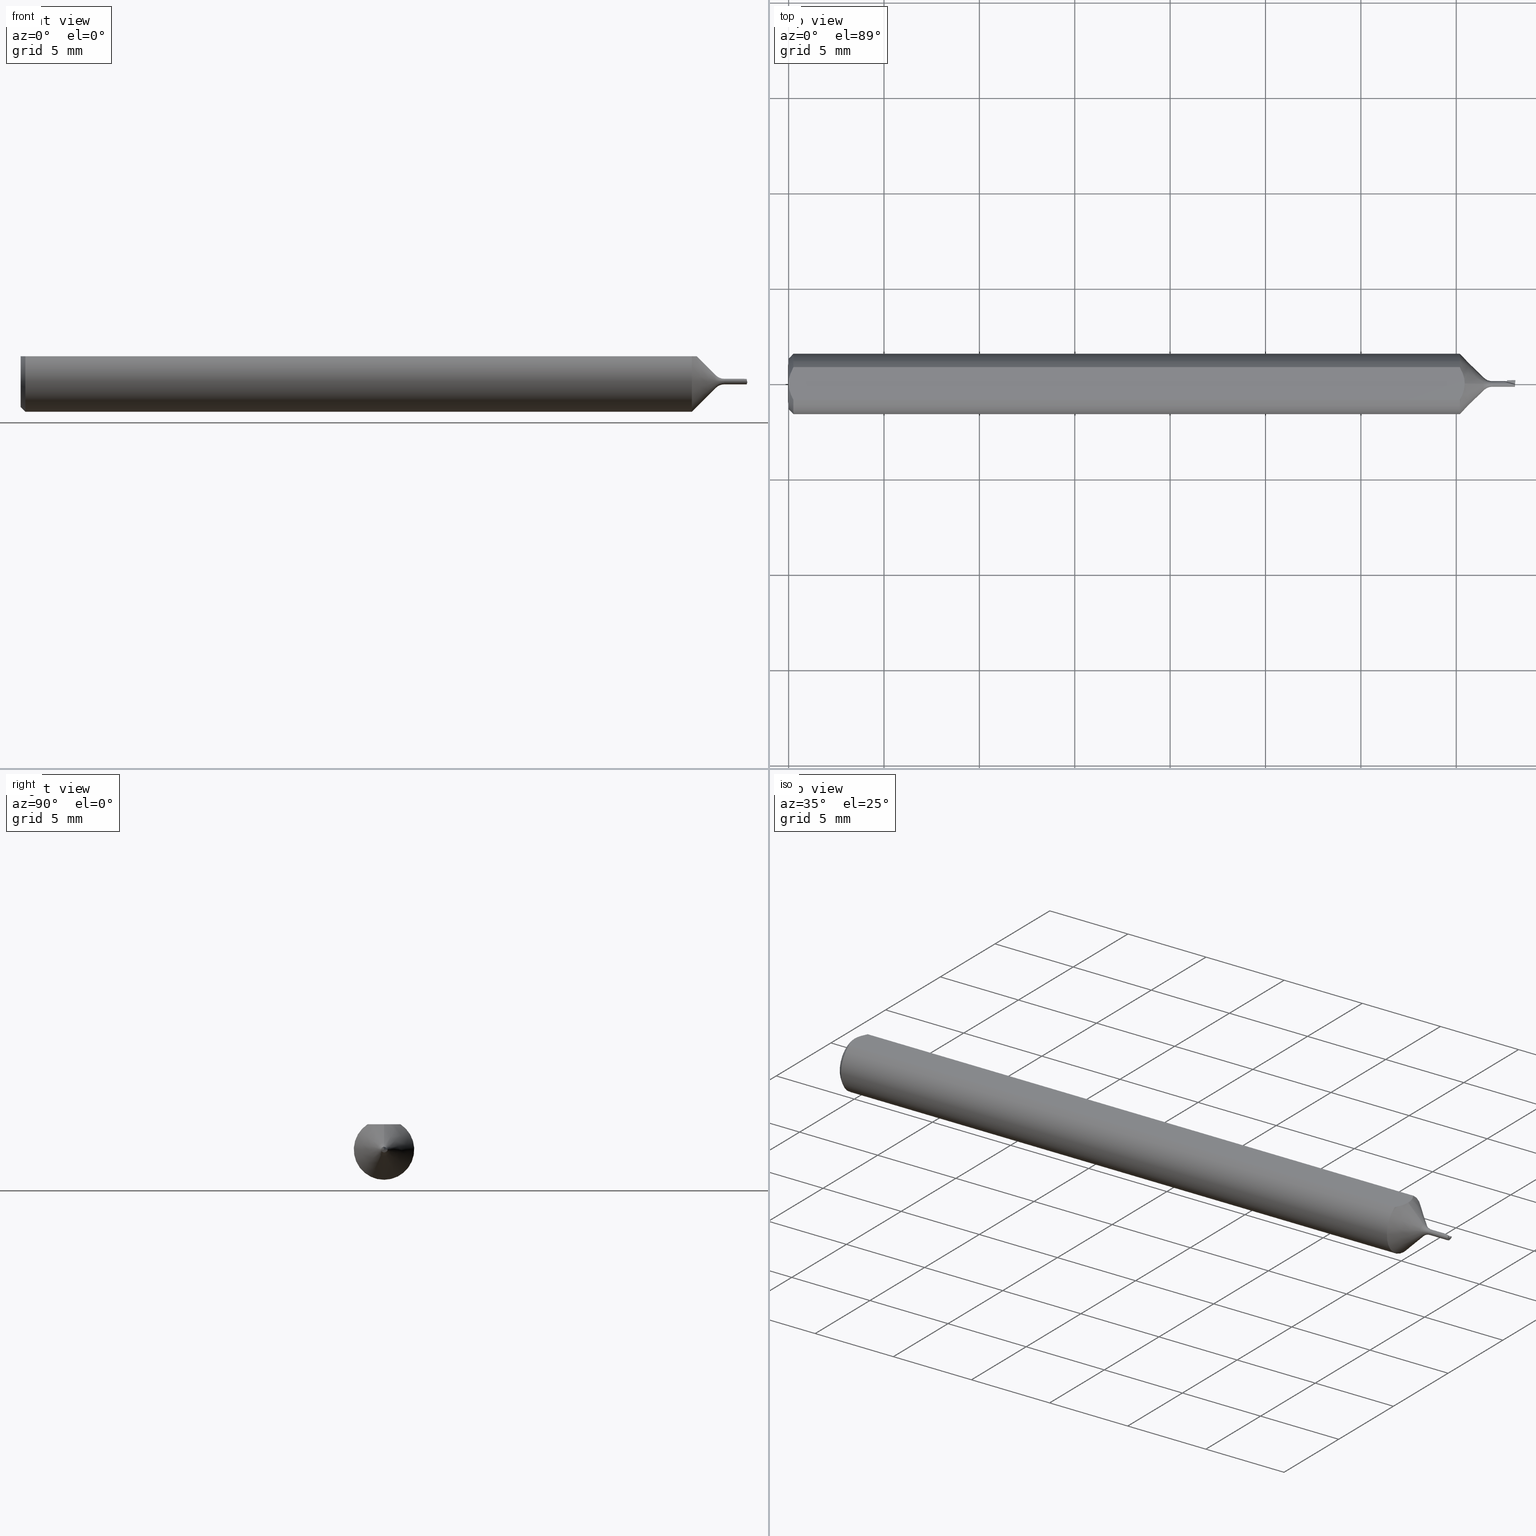
[diagram: canonical four-view strip — front | top / right | iso, engineering-drawing reading convention]
A machine part, canonical four-view strip (front | top / right | iso — engineering-drawing reading convention). The complete STEP part file that produces these views, byte-faithful:
ISO-10303-21;
HEADER;
FILE_DESCRIPTION (( 'STEP AP203' ),
    '1' );
FILE_NAME ('210001-MB015050.STEP',
    '2025-01-28T22:19:08',
    ( '' ),
    ( '' ),
    'SwSTEP 2.0',
    'SolidWorks 2024',
    '' );
FILE_SCHEMA (( 'CONFIG_CONTROL_DESIGN' ));
ENDSEC;

DATA;
#1 = AXIS2_PLACEMENT_3D ( 'NONE', #580, #138, #286 ) ;
#2 = CARTESIAN_POINT ( 'NONE',  ( 1.499282403470484137, 0.005951440925968072733, -0.003816130532801915911 ) ) ;
#3 = VERTEX_POINT ( 'NONE', #640 ) ;
#4 = LINE ( 'NONE', #482, #633 ) ;
#5 = ORIENTED_EDGE ( 'NONE', *, *, #457, .F. ) ;
#6 = DIRECTION ( 'NONE',  ( -1.000000000000000000, -0.000000000000000000, -0.000000000000000000 ) ) ;
#7 = CARTESIAN_POINT ( 'NONE',  ( 1.434677669529663691, 0.000000000000000000, 0.01307233047033636367 ) ) ;
#8 = EDGE_CURVE ( 'NONE', #109, #192, #76, .T. ) ;
#9 = AXIS2_PLACEMENT_3D ( 'NONE', #534, #639, #494 ) ;
#10 = CARTESIAN_POINT ( 'NONE',  ( 1.434677669529663691, 1.600898766789383965E-18, -0.01307233047033636193 ) ) ;
#11 = CARTESIAN_POINT ( 'NONE',  ( 0.000000000000000000, -0.03386738844375220686, 0.05235000000000000070 ) ) ;
#12 = ORIENTED_EDGE ( 'NONE', *, *, #139, .F. ) ;
#13 = CARTESIAN_POINT ( 'NONE',  ( 1.434677669529663691, 1.600898766789384158E-18, -0.01307233047033636367 ) ) ;
#14 = CARTESIAN_POINT ( 'NONE',  ( 0.000000000000000000, 0.000000000000000000, 0.005750000000000002505 ) ) ;
#15 = FACE_OUTER_BOUND ( 'NONE', #134, .T. ) ;
#16 = CARTESIAN_POINT ( 'NONE',  ( 0.001063697276021616971, 0.01189177144351694082, 0.05235000000000001458 ) ) ;
#17 = CC_DESIGN_APPROVAL ( #540, ( #426 ) ) ;
#18 = EDGE_CURVE ( 'NONE', #431, #39, #570, .T. ) ;
#19 = LINE ( 'NONE', #558, #442 ) ;
#20 = DIRECTION ( 'NONE',  ( 1.000000000000000000, 0.000000000000000000, 0.000000000000000000 ) ) ;
#21 = APPLICATION_PROTOCOL_DEFINITION ( 'international standard', 'config_control_design', 1994, #33 ) ;
#22 = DIRECTION ( 'NONE',  ( -1.000000000000000000, 0.000000000000000000, -0.000000000000000000 ) ) ;
#23 = ORIENTED_EDGE ( 'NONE', *, *, #553, .F. ) ;
#24 = PRODUCT_DEFINITION_SHAPE ( 'NONE', 'NONE',  #426 ) ;
#25 = LINE ( 'NONE', #279, #163 ) ;
#26 = EDGE_CURVE ( 'NONE', #109, #342, #560, .T. ) ;
#27 = ORIENTED_EDGE ( 'NONE', *, *, #225, .F. ) ;
#28 =( CONVERSION_BASED_UNIT ( 'INCH', #429 ) LENGTH_UNIT ( ) NAMED_UNIT ( #181 ) );
#29 = CONICAL_SURFACE ( 'NONE', #524, 0.01307233047033636367, 0.7853981633974501664 ) ;
#30 = DIRECTION ( 'NONE',  ( 0.000000000000000000, 0.000000000000000000, 1.000000000000000000 ) ) ;
#31 = VECTOR ( 'NONE', #433, 39.37007874015748854 ) ;
#32 = VERTEX_POINT ( 'NONE', #274 ) ;
#33 = APPLICATION_CONTEXT ( 'configuration controlled 3d designs of mechanical parts and assemblies' ) ;
#34 = CALENDAR_DATE ( 2025, 28, 1 ) ;
#35 = CARTESIAN_POINT ( 'NONE',  ( 1.385400000000000187, 7.635672792683749753E-18, -0.06235000000000000958 ) ) ;
#36 = ORIENTED_EDGE ( 'NONE', *, *, #603, .T. ) ;
#37 = EDGE_CURVE ( 'NONE', #261, #80, #218, .T. ) ;
#38 = DIRECTION ( 'NONE',  ( -1.000000000000000000, 0.000000000000000000, -0.000000000000000000 ) ) ;
#39 = VERTEX_POINT ( 'NONE', #564 ) ;
#40 = COORDINATED_UNIVERSAL_TIME_OFFSET ( 8, 0, .BEHIND. ) ;
#41 = CARTESIAN_POINT ( 'NONE',  ( 1.494969582669396502, -0.0004450547791698049684, 0.005750000000000006842 ) ) ;
#42 = ORIENTED_EDGE ( 'NONE', *, *, #504, .F. ) ;
#43 = CC_DESIGN_PERSON_AND_ORGANIZATION_ASSIGNMENT ( #579, #528, ( #426 ) ) ;
#44 = AXIS2_PLACEMENT_3D ( 'NONE', #79, #194, #89 ) ;
#45 = DIRECTION ( 'NONE',  ( 1.000000000000000000, -0.000000000000000000, 0.000000000000000000 ) ) ;
#46 = VERTEX_POINT ( 'NONE', #456 ) ;
#47 = PERSON_AND_ORGANIZATION ( #551, #364 ) ;
#48 = DIRECTION ( 'NONE',  ( -0.9864997997699080923, 0.08630754905044249470, 0.1391731009600517821 ) ) ;
#49 = ORIENTED_EDGE ( 'NONE', *, *, #26, .T. ) ;
#50 = ADVANCED_FACE ( 'NONE', ( #165 ), #308, .T. ) ;
#51 = COORDINATED_UNIVERSAL_TIME_OFFSET ( 8, 0, .BEHIND. ) ;
#52 = PRODUCT_RELATED_PRODUCT_CATEGORY ( 'detail', '', ( #231 ) ) ;
#53 = CARTESIAN_POINT ( 'NONE',  ( 0.01000000000000002970, 0.03386738844375217911, 0.05235000000000001458 ) ) ;
#54 = AXIS2_PLACEMENT_3D ( 'NONE', #348, #48, #103 ) ;
#55 = CARTESIAN_POINT ( 'NONE',  ( 0.01000000000000002970, 0.03386738844375217911, 0.05235000000000001458 ) ) ;
#56 = LOCAL_TIME ( 14, 19, 8.000000000000000000, #51 ) ;
#57 = DIRECTION ( 'NONE',  ( -0.1634519077459254122, -0.4666144205109024612, -0.8692263551144155942 ) ) ;
#58 = ORIENTED_EDGE ( 'NONE', *, *, #446, .F. ) ;
#59 = DIRECTION ( 'NONE',  ( -1.000000000000000000, 0.000000000000000000, -0.000000000000000000 ) ) ;
#60 = DIRECTION ( 'NONE',  ( 0.1293675338645188522, 0.9317961139776890223, 0.3391460498928009493 ) ) ;
#61 = CARTESIAN_POINT ( 'NONE',  ( 1.434677669529663691, 0.000000000000000000, 0.000000000000000000 ) ) ;
#62 = DIRECTION ( 'NONE',  ( -1.000000000000000000, 0.000000000000000000, -0.000000000000000000 ) ) ;
#63 = EDGE_LOOP ( 'NONE', ( #71, #168, #318, #481, #377 ) ) ;
#64 = FACE_OUTER_BOUND ( 'NONE', #438, .T. ) ;
#65 = DIRECTION ( 'NONE',  ( 0.000000000000000000, -1.224646799147353207E-16, 1.000000000000000000 ) ) ;
#66 = DIRECTION ( 'NONE',  ( 0.000000000000000000, 0.000000000000000000, -1.000000000000000000 ) ) ;
#67 = CARTESIAN_POINT ( 'NONE',  ( 1.395400000000000196, -0.005922649332173337763, 0.05235000000000002152 ) ) ;
#68 = EDGE_CURVE ( 'NONE', #362, #120, #176, .T. ) ;
#69 = DIRECTION ( 'NONE',  ( 0.1396943646708919684, 0.000000000000000000, -0.9901946699913082295 ) ) ;
#70 = FACE_OUTER_BOUND ( 'NONE', #353, .T. ) ;
#71 = ORIENTED_EDGE ( 'NONE', *, *, #349, .T. ) ;
#72 = PRODUCT_DEFINITION_FORMATION_WITH_SPECIFIED_SOURCE ( 'ANY', '', #231, .NOT_KNOWN. ) ;
#73 = APPROVAL_ROLE ( '' ) ;
#74 = AXIS2_PLACEMENT_3D ( 'NONE', #371, #509, #65 ) ;
#75 = CARTESIAN_POINT ( 'NONE',  ( 0.01000000000000002970, 0.000000000000000000, 0.000000000000000000 ) ) ;
#76 =( BOUNDED_CURVE ( )  B_SPLINE_CURVE ( 3, ( #351, #542, #299, #492 ),
 .UNSPECIFIED., .F., .T. ) 
 B_SPLINE_CURVE_WITH_KNOTS ( ( 4, 4 ),
 ( 4.982986395506920019, 6.553782722301815689 ),
 .UNSPECIFIED. ) 
 CURVE ( )  GEOMETRIC_REPRESENTATION_ITEM ( )  RATIONAL_B_SPLINE_CURVE ( ( 1.000000000000000000, 0.8047378541243652705, 0.8047378541243652705, 1.000000000000000000 ) ) 
 REPRESENTATION_ITEM ( '' )  );
#77 = CARTESIAN_POINT ( 'NONE',  ( 1.452355339059327344, 0.000000000000000000, 0.000000000000000000 ) ) ;
#78 = EDGE_CURVE ( 'NONE', #531, #465, #220, .T. ) ;
#79 = CARTESIAN_POINT ( 'NONE',  ( 1.483000000000000096, 0.005749999999999999903, 0.000000000000000000 ) ) ;
#80 = VERTEX_POINT ( 'NONE', #315 ) ;
#81 = DIRECTION ( 'NONE',  ( -1.000000000000000000, 0.000000000000000000, -0.000000000000000000 ) ) ;
#82 = ORIENTED_EDGE ( 'NONE', *, *, #624, .T. ) ;
#83 = CIRCLE ( 'NONE', #343, 0.01307233047033636367 ) ;
#84 = CARTESIAN_POINT ( 'NONE',  ( 1.483000000000000096, 0.007554839333324047876, -1.067128122525102820E-18 ) ) ;
#85 = VECTOR ( 'NONE', #622, 39.37007874015748143 ) ;
#86 = ORIENTED_EDGE ( 'NONE', *, *, #229, .T. ) ;
#87 = ADVANCED_FACE ( 'NONE', ( #555 ), #361, .T. ) ;
#88 = COORDINATED_UNIVERSAL_TIME_OFFSET ( 8, 0, .BEHIND. ) ;
#89 = DIRECTION ( 'NONE',  ( 0.000000000000000000, 0.000000000000000000, -1.000000000000000000 ) ) ;
#90 = ORIENTED_EDGE ( 'NONE', *, *, #545, .F. ) ;
#91 = CARTESIAN_POINT ( 'NONE',  ( 1.498395057673378661, -0.001320290275919796998, 0.005596367892420194695 ) ) ;
#92 = ORIENTED_EDGE ( 'NONE', *, *, #504, .T. ) ;
#93 = DATE_AND_TIME ( #347, #599 ) ;
#94 = CARTESIAN_POINT ( 'NONE',  ( 1.493308615621382840, 0.000000000000000000, 0.005750000000000002505 ) ) ;
#95 = AXIS2_PLACEMENT_3D ( 'NONE', #77, #615, #522 ) ;
#96 = ORIENTED_EDGE ( 'NONE', *, *, #319, .F. ) ;
#97 = DIRECTION ( 'NONE',  ( 0.9659258262890716429, -0.2588190451025078054, 0.000000000000000000 ) ) ;
#98 = EDGE_CURVE ( 'NONE', #295, #46, #614, .T. ) ;
#99 =( BOUNDED_CURVE ( )  B_SPLINE_CURVE ( 3, ( #298, #394, #144, #491 ),
 .UNSPECIFIED., .F., .F. ) 
 B_SPLINE_CURVE_WITH_KNOTS ( ( 4, 4 ),
 ( 5.728084607564705166, 7.298880934359537775 ),
 .UNSPECIFIED. ) 
 CURVE ( )  GEOMETRIC_REPRESENTATION_ITEM ( )  RATIONAL_B_SPLINE_CURVE ( ( 1.000000000000000000, 0.8047378541243800365, 0.8047378541243800365, 1.000000000000000000 ) ) 
 REPRESENTATION_ITEM ( '' )  );
#100 = ORIENTED_EDGE ( 'NONE', *, *, #229, .F. ) ;
#101 = ORIENTED_EDGE ( 'NONE', *, *, #485, .T. ) ;
#102 = APPROVAL ( #320, 'UNSPECIFIED' ) ;
#103 = DIRECTION ( 'NONE',  ( 0.1396943646708780906, 0.000000000000000000, 0.9901946699913101169 ) ) ;
#104 = LOCAL_TIME ( 14, 19, 8.000000000000000000, #88 ) ;
#105 = EDGE_LOOP ( 'NONE', ( #27, #129, #645, #290, #49, #530 ) ) ;
#106 = EDGE_CURVE ( 'NONE', #465, #362, #132, .T. ) ;
#107 = CONICAL_SURFACE ( 'NONE', #199, 0.01307233047033636367, 0.7853981633974501664 ) ;
#108 = DIRECTION ( 'NONE',  ( -0.9990412074052671398, -0.04113950153445256747, -0.01497355401108969516 ) ) ;
#109 = VERTEX_POINT ( 'NONE', #608 ) ;
#110 = EDGE_CURVE ( 'NONE', #567, #80, #263, .T. ) ;
#111 = CARTESIAN_POINT ( 'NONE',  ( 1.452355339059327344, 0.000000000000000000, 0.000000000000000000 ) ) ;
#112 = CARTESIAN_POINT ( 'NONE',  ( -8.222555661594205093E-16, 0.005954997531773998168, 0.05235000000000002152 ) ) ;
#113 = DIRECTION ( 'NONE',  ( -1.000000000000000000, 0.000000000000000000, -0.000000000000000000 ) ) ;
#114 = DIRECTION ( 'NONE',  ( 0.000000000000000000, 0.000000000000000000, -1.000000000000000000 ) ) ;
#115 = AXIS2_PLACEMENT_3D ( 'NONE', #235, #187, #625 ) ;
#116 = CIRCLE ( 'NONE', #206, 0.06235000000000000264 ) ;
#117 = LINE ( 'NONE', #506, #354 ) ;
#118 = CARTESIAN_POINT ( 'NONE',  ( 1.499738978031866843, 0.009378964034756473792, -0.002705358454831860264 ) ) ;
#119 = EDGE_CURVE ( 'NONE', #517, #140, #324, .T. ) ;
#120 = VERTEX_POINT ( 'NONE', #605 ) ;
#121 = DIRECTION ( 'NONE',  ( -1.000000000000000000, 0.000000000000000000, -0.000000000000000000 ) ) ;
#122 = CARTESIAN_POINT ( 'NONE',  ( 1.560200597524541877, 0.001966615824122618789, -0.005403232569518965842 ) ) ;
#123 = PERSON_AND_ORGANIZATION ( #551, #364 ) ;
#124 = CARTESIAN_POINT ( 'NONE',  ( 0.000000000000000000, 0.000000000000000000, 0.05235000000000005621 ) ) ;
#125 = CIRCLE ( 'NONE', #160, 0.005749999999999999903 ) ;
#126 = ADVANCED_FACE ( 'NONE', ( #70 ), #312, .F. ) ;
#127 = PERSON_AND_ORGANIZATION ( #551, #364 ) ;
#128 = DIRECTION ( 'NONE',  ( 0.000000000000000000, -0.7072279454806355004, -0.7069855961271339639 ) ) ;
#129 = ORIENTED_EDGE ( 'NONE', *, *, #408, .T. ) ;
#130 = EDGE_CURVE ( 'NONE', #261, #305, #145, .T. ) ;
#131 = PERSON_AND_ORGANIZATION ( #551, #364 ) ;
#132 = B_SPLINE_CURVE_WITH_KNOTS ( 'NONE', 3,
 ( #215, #67, #213, #410, #415, #271 ),
 .UNSPECIFIED., .F., .F.,
 ( 4, 2, 4 ),
 ( 0.003147381525721188247, 0.003596555799849169080, 0.004045730073977149913 ),
 .UNSPECIFIED. ) ;
#133 = CC_DESIGN_PERSON_AND_ORGANIZATION_ASSIGNMENT ( #419, #182, ( #72 ) ) ;
#134 = EDGE_LOOP ( 'NONE', ( #619, #202, #211 ) ) ;
#135 = FACE_OUTER_BOUND ( 'NONE', #505, .T. ) ;
#136 = EDGE_LOOP ( 'NONE', ( #448, #233, #346, #589 ) ) ;
#137 = APPROVAL_ROLE ( '' ) ;
#138 = DIRECTION ( 'NONE',  ( -1.000000000000000000, -0.000000000000000000, -0.000000000000000000 ) ) ;
#139 = EDGE_CURVE ( 'NONE', #39, #120, #147, .T. ) ;
#140 = VERTEX_POINT ( 'NONE', #499 ) ;
#141 = PERSON_AND_ORGANIZATION_ROLE ( 'classification_officer' ) ;
#142 = FACE_OUTER_BOUND ( 'NONE', #627, .T. ) ;
#143 = ORIENTED_EDGE ( 'NONE', *, *, #421, .T. ) ;
#144 = CARTESIAN_POINT ( 'NONE',  ( 1.498321842882053945, -0.005749999999999796073, -0.003368272016354886475 ) ) ;
#145 =( BOUNDED_CURVE ( )  B_SPLINE_CURVE ( 3, ( #418, #412, #179, #171 ),
 .UNSPECIFIED., .F., .F. ) 
 B_SPLINE_CURVE_WITH_KNOTS ( ( 4, 4 ),
 ( 5.379018757165837883, 5.728084607564705166 ),
 .UNSPECIFIED. ) 
 CURVE ( )  GEOMETRIC_REPRESENTATION_ITEM ( )  RATIONAL_B_SPLINE_CURVE ( ( 1.000000000000000000, 0.9898718353414719395, 0.9898718353414719395, 1.000000000000000000 ) ) 
 REPRESENTATION_ITEM ( '' )  );
#146 = EDGE_LOOP ( 'NONE', ( #495, #100, #380, #92 ) ) ;
#147 = B_SPLINE_CURVE_WITH_KNOTS ( 'NONE', 3,
 ( #124, #451, #365, #602, #359, #552 ),
 .UNSPECIFIED., .F., .F.,
 ( 4, 2, 4 ),
 ( 0.001820301466808306933, 0.002269751589840580432, 0.002719201712872853713 ),
 .UNSPECIFIED. ) ;
#148 = EDGE_CURVE ( 'NONE', #177, #272, #269, .T. ) ;
#149 = FACE_OUTER_BOUND ( 'NONE', #151, .T. ) ;
#150 = CONICAL_SURFACE ( 'NONE', #590, 0.05235000000000005621, 0.7853981633974447263 ) ;
#151 = EDGE_LOOP ( 'NONE', ( #392, #238, #339, #200 ) ) ;
#152 = VECTOR ( 'NONE', #407, 39.37007874015748143 ) ;
#153 = CALENDAR_DATE ( 2025, 28, 1 ) ;
#154 = CARTESIAN_POINT ( 'NONE',  ( 0.000000000000000000, 0.000000000000000000, 0.000000000000000000 ) ) ;
#155 = ORIENTED_EDGE ( 'NONE', *, *, #106, .F. ) ;
#156 = FACE_OUTER_BOUND ( 'NONE', #631, .T. ) ;
#157 = EDGE_LOOP ( 'NONE', ( #326, #549, #42, #638, #356, #143, #250, #23 ) ) ;
#158 = ADVANCED_FACE ( 'NONE', ( #430 ), #335, .F. ) ;
#159 = DIRECTION ( 'NONE',  ( -1.000000000000000000, 0.000000000000000000, -0.000000000000000000 ) ) ;
#160 = AXIS2_PLACEMENT_3D ( 'NONE', #214, #59, #310 ) ;
#161 = EDGE_LOOP ( 'NONE', ( #86, #309, #572, #297, #374 ) ) ;
#162 = CC_DESIGN_PERSON_AND_ORGANIZATION_ASSIGNMENT ( #327, #519, ( #231 ) ) ;
#163 = VECTOR ( 'NONE', #198, 39.37007874015748143 ) ;
#164 = LINE ( 'NONE', #13, #472 ) ;
#165 = FACE_OUTER_BOUND ( 'NONE', #287, .T. ) ;
#166 = LINE ( 'NONE', #262, #311 ) ;
#167 = DIRECTION ( 'NONE',  ( 0.000000000000000000, 0.3420201433256727652, -0.9396926207859069846 ) ) ;
#168 = ORIENTED_EDGE ( 'NONE', *, *, #98, .F. ) ;
#169 = EDGE_CURVE ( 'NONE', #431, #204, #25, .T. ) ;
#170 = CARTESIAN_POINT ( 'NONE',  ( 1.452355339059327344, 0.000000000000000000, 0.000000000000000000 ) ) ;
#171 = CARTESIAN_POINT ( 'NONE',  ( 1.498488894044102793, 7.041719095097283645E-19, -0.005750000000000002505 ) ) ;
#172 = CC_DESIGN_PERSON_AND_ORGANIZATION_ASSIGNMENT ( #386, #141, ( #610 ) ) ;
#173 = AXIS2_PLACEMENT_3D ( 'NONE', #611, #6, #66 ) ;
#174 = AXIS2_PLACEMENT_3D ( 'NONE', #566, #20, #114 ) ;
#175 = CARTESIAN_POINT ( 'NONE',  ( 1.434677669529663691, 0.000000000000000000, 0.01307233047033636193 ) ) ;
#176 = LINE ( 'NONE', #11, #344 ) ;
#177 = VERTEX_POINT ( 'NONE', #516 ) ;
#178 = CALENDAR_DATE ( 2025, 28, 1 ) ;
#179 = CARTESIAN_POINT ( 'NONE',  ( 1.498547726859329465, 0.0006724621551572815270, -0.005750000000000006842 ) ) ;
#180 = EDGE_CURVE ( 'NONE', #230, #372, #464, .T. ) ;
#181 = DIMENSIONAL_EXPONENTS ( 1.000000000000000000, 0.000000000000000000, 0.000000000000000000, 0.000000000000000000, 0.000000000000000000, 0.000000000000000000, 0.000000000000000000 ) ;
#182 = PERSON_AND_ORGANIZATION_ROLE ( 'creator' ) ;
#183 = CARTESIAN_POINT ( 'NONE',  ( 0.01000000000000002970, 0.000000000000000000, 0.000000000000000000 ) ) ;
#184 = ORIENTED_EDGE ( 'NONE', *, *, #306, .T. ) ;
#185 = EDGE_CURVE ( 'NONE', #477, #597, #476, .T. ) ;
#186 = AXIS2_PLACEMENT_3D ( 'NONE', #449, #270, #268 ) ;
#187 = DIRECTION ( 'NONE',  ( 0.01850989765925709074, -0.7068644733530222712, 0.7071067811865464625 ) ) ;
#188 = CARTESIAN_POINT ( 'NONE',  ( 1.452355339059327344, 0.000000000000000000, 0.000000000000000000 ) ) ;
#189 = APPLICATION_CONTEXT ( 'configuration controlled 3d designs of mechanical parts and assemblies' ) ;
#190 = EDGE_LOOP ( 'NONE', ( #575, #556, #539, #473, #155, #578 ) ) ;
#191 = DIRECTION ( 'NONE',  ( 1.000000000000000000, 0.000000000000000000, 0.000000000000000000 ) ) ;
#192 = VERTEX_POINT ( 'NONE', #583 ) ;
#193 = DATE_AND_TIME ( #34, #581 ) ;
#194 = DIRECTION ( 'NONE',  ( 1.000000000000000000, 0.000000000000000000, 0.000000000000000000 ) ) ;
#195 = ORIENTED_EDGE ( 'NONE', *, *, #110, .T. ) ;
#196 = CIRCLE ( 'NONE', #333, 0.06235000000000000264 ) ;
#197 = DATE_AND_TIME ( #153, #56 ) ;
#198 = DIRECTION ( 'NONE',  ( 1.000000000000000000, -0.000000000000000000, 0.000000000000000000 ) ) ;
#199 = AXIS2_PLACEMENT_3D ( 'NONE', #388, #618, #373 ) ;
#200 = ORIENTED_EDGE ( 'NONE', *, *, #568, .F. ) ;
#201 = FACE_OUTER_BOUND ( 'NONE', #190, .T. ) ;
#202 = ORIENTED_EDGE ( 'NONE', *, *, #397, .T. ) ;
#203 = CARTESIAN_POINT ( 'NONE',  ( 1.498797030876518832, -0.005749999999999979086, -3.190713086350057608E-16 ) ) ;
#204 = VERTEX_POINT ( 'NONE', #321 ) ;
#205 = CARTESIAN_POINT ( 'NONE',  ( 1.498404957741914734, -0.005750000000000114395, 0.002779129487769331844 ) ) ;
#206 = AXIS2_PLACEMENT_3D ( 'NONE', #75, #520, #626 ) ;
#207 = PLANE ( 'NONE',  #54 ) ;
#208 = ORIENTED_EDGE ( 'NONE', *, *, #349, .F. ) ;
#209 = DIRECTION ( 'NONE',  ( 0.9996573249755572599, 0.02617694830787355154, 3.478069957074613798E-17 ) ) ;
#210 = ADVANCED_FACE ( 'NONE', ( #135 ), #282, .F. ) ;
#211 = ORIENTED_EDGE ( 'NONE', *, *, #510, .F. ) ;
#212 = LINE ( 'NONE', #508, #254 ) ;
#213 = CARTESIAN_POINT ( 'NONE',  ( 1.394327790335842199, -0.01191871399956039371, 0.05235000000000002152 ) ) ;
#214 = CARTESIAN_POINT ( 'NONE',  ( 1.483000000000000096, 0.000000000000000000, 0.000000000000000000 ) ) ;
#215 = CARTESIAN_POINT ( 'NONE',  ( 1.395400000000000196, 2.856421857282948772E-21, 0.05235000000000001458 ) ) ;
#216 = EDGE_CURVE ( 'NONE', #3, #372, #382, .T. ) ;
#217 = CARTESIAN_POINT ( 'NONE',  ( 1.395400000000000196, 2.856421857282948772E-21, 0.05235000000000001458 ) ) ;
#218 = LINE ( 'NONE', #118, #366 ) ;
#219 = CARTESIAN_POINT ( 'NONE',  ( 1.499623914054643459, 0.006926368447607679675, -0.001999999999999995705 ) ) ;
#220 = LINE ( 'NONE', #7, #443 ) ;
#221 = AXIS2_PLACEMENT_3D ( 'NONE', #628, #417, #475 ) ;
#222 = CC_DESIGN_APPROVAL ( #490, ( #610 ) ) ;
#223 = AXIS2_PLACEMENT_3D ( 'NONE', #188, #81, #30 ) ;
#224 = CYLINDRICAL_SURFACE ( 'NONE', #621, 0.005750000000000002505 ) ;
#225 = EDGE_CURVE ( 'NONE', #305, #140, #441, .T. ) ;
#226 = DIRECTION ( 'NONE',  ( 0.000000000000000000, 0.9396926207859068736, 0.3420201433256727097 ) ) ;
#227 = DATE_AND_TIME ( #463, #322 ) ;
#228 = CYLINDRICAL_SURFACE ( 'NONE', #246, 0.06235000000000000264 ) ;
#229 = EDGE_CURVE ( 'NONE', #531, #517, #398, .T. ) ;
#230 = VERTEX_POINT ( 'NONE', #325 ) ;
#231 = PRODUCT ( '210001-MB015050', '210001-MB015050', '', ( #569 ) ) ;
#232 = LINE ( 'NONE', #423, #387 ) ;
#233 = ORIENTED_EDGE ( 'NONE', *, *, #259, .F. ) ;
#234 = TOROIDAL_SURFACE ( 'NONE', #275, 0.03075000000000000649, 0.02500000000000000139 ) ;
#235 = CARTESIAN_POINT ( 'NONE',  ( 1.475036403936227369, 0.006282521836065577993, -0.001999999999999995705 ) ) ;
#236 = VECTOR ( 'NONE', #317, 39.37007874015748854 ) ;
#237 = DIRECTION ( 'NONE',  ( -1.000000000000000000, 0.000000000000000000, -0.000000000000000000 ) ) ;
#238 = ORIENTED_EDGE ( 'NONE', *, *, #319, .T. ) ;
#239 = ADVANCED_FACE ( 'NONE', ( #329 ), #474, .T. ) ;
#240 = FACE_OUTER_BOUND ( 'NONE', #390, .T. ) ;
#241 = ORIENTED_EDGE ( 'NONE', *, *, #576, .F. ) ;
#242 = DIRECTION ( 'NONE',  ( 0.000000000000000000, 0.000000000000000000, 1.000000000000000000 ) ) ;
#243 = ORIENTED_EDGE ( 'NONE', *, *, #259, .T. ) ;
#244 = CC_DESIGN_APPROVAL ( #102, ( #72 ) ) ;
#245 = CARTESIAN_POINT ( 'NONE',  ( 1.452355339059327344, 0.000000000000000000, 0.03075000000000000649 ) ) ;
#246 = AXIS2_PLACEMENT_3D ( 'NONE', #529, #38, #242 ) ;
#247 = ORIENTED_EDGE ( 'NONE', *, *, #568, .T. ) ;
#248 = DIRECTION ( 'NONE',  ( -0.000000000000000000, -1.000000000000000000, 0.000000000000000000 ) ) ;
#249 = EDGE_CURVE ( 'NONE', #120, #597, #116, .T. ) ;
#250 = ORIENTED_EDGE ( 'NONE', *, *, #545, .T. ) ;
#251 = CARTESIAN_POINT ( 'NONE',  ( 1.452355339059327344, 0.000000000000000000, 0.005750000000000004240 ) ) ;
#252 = ORIENTED_EDGE ( 'NONE', *, *, #68, .T. ) ;
#253 = APPROVAL_DATE_TIME ( #93, #490 ) ;
#254 = VECTOR ( 'NONE', #307, 39.37007874015748854 ) ;
#255 = CARTESIAN_POINT ( 'NONE',  ( 1.498395057673378661, -0.001320290275919796998, 0.005596367892420194695 ) ) ;
#256 = DESIGN_CONTEXT ( 'detailed design', #33, 'design' ) ;
#257 = CARTESIAN_POINT ( 'NONE',  ( 0.004671770759546971762, 0.02323517832780105929, 0.05235000000000003539 ) ) ;
#258 = VECTOR ( 'NONE', #128, 39.37007874015748854 ) ;
#259 = EDGE_CURVE ( 'NONE', #39, #477, #559, .T. ) ;
#260 = DIRECTION ( 'NONE',  ( 3.169514471227718562E-17, 1.182878904194730201E-16, -1.000000000000000000 ) ) ;
#261 = VERTEX_POINT ( 'NONE', #523 ) ;
#262 = CARTESIAN_POINT ( 'NONE',  ( 1.483000000000000096, 0.007156833723656485895, -0.0007482831776037642468 ) ) ;
#263 = LINE ( 'NONE', #454, #236 ) ;
#264 = FACE_OUTER_BOUND ( 'NONE', #292, .T. ) ;
#265 = CIRCLE ( 'NONE', #396, 0.02500000000000000139 ) ;
#266 = CARTESIAN_POINT ( 'NONE',  ( 1.499300090691792819, 0.000000000000000000, -2.134256245050205639E-18 ) ) ;
#267 = EDGE_CURVE ( 'NONE', #597, #431, #276, .T. ) ;
#268 = DIRECTION ( 'NONE',  ( -1.000000000000000000, 0.000000000000000000, -0.000000000000000000 ) ) ;
#269 = LINE ( 'NONE', #577, #85 ) ;
#270 = DIRECTION ( 'NONE',  ( 0.000000000000000000, 0.000000000000000000, -1.000000000000000000 ) ) ;
#271 = CARTESIAN_POINT ( 'NONE',  ( 1.385400000000000187, -0.03386738844375220686, 0.05235000000000000070 ) ) ;
#272 = VERTEX_POINT ( 'NONE', #84 ) ;
#273 = CARTESIAN_POINT ( 'NONE',  ( 0.01000000000000002970, 0.000000000000000000, -0.06235000000000001652 ) ) ;
#274 = CARTESIAN_POINT ( 'NONE',  ( 1.498797030876518832, -0.005749999999999979086, -3.190713086350057608E-16 ) ) ;
#275 = AXIS2_PLACEMENT_3D ( 'NONE', #170, #413, #409 ) ;
#276 = CIRCLE ( 'NONE', #493, 0.06235000000000000264 ) ;
#277 = COORDINATED_UNIVERSAL_TIME_OFFSET ( 8, 0, .BEHIND. ) ;
#278 = DIRECTION ( 'NONE',  ( 0.000000000000000000, 0.000000000000000000, -1.000000000000000000 ) ) ;
#279 = CARTESIAN_POINT ( 'NONE',  ( 0.000000000000000000, 0.03386738844375220686, 0.05235000000000000070 ) ) ;
#280 = VERTEX_POINT ( 'NONE', #35 ) ;
#281 = APPROVAL_STATUS ( 'not_yet_approved' ) ;
#282 = PLANE ( 'NONE',  #44 ) ;
#283 = ADVANCED_FACE ( 'NONE', ( #240 ), #228, .T. ) ;
#284 = ORIENTED_EDGE ( 'NONE', *, *, #612, .T. ) ;
#285 = DIRECTION ( 'NONE',  ( -1.000000000000000000, 0.000000000000000000, -0.000000000000000000 ) ) ;
#286 = DIRECTION ( 'NONE',  ( 0.000000000000000000, 0.000000000000000000, -1.000000000000000000 ) ) ;
#287 = EDGE_LOOP ( 'NONE', ( #623, #424, #468, #584 ) ) ;
#288 =( NAMED_UNIT ( * ) SI_UNIT ( $, .STERADIAN. ) SOLID_ANGLE_UNIT ( ) );
#289 = DIRECTION ( 'NONE',  ( 0.000000000000000000, 0.000000000000000000, 1.000000000000000000 ) ) ;
#290 = ORIENTED_EDGE ( 'NONE', *, *, #439, .T. ) ;
#291 = CARTESIAN_POINT ( 'NONE',  ( 1.385400000000000187, 0.03386738844375220686, 0.05235000000000000070 ) ) ;
#292 = EDGE_LOOP ( 'NONE', ( #521, #489, #82, #58 ) ) ;
#293 = SHAPE_DEFINITION_REPRESENTATION ( #24, #488 ) ;
#294 = CARTESIAN_POINT ( 'NONE',  ( 1.395400000000000196, 0.005922531291932073109, 0.05235000000000002152 ) ) ;
#295 = VERTEX_POINT ( 'NONE', #420 ) ;
#296 = CARTESIAN_POINT ( 'NONE',  ( 1.475008566875612548, 0.007345576292303543711, -1.067128122525102820E-18 ) ) ;
#297 = ORIENTED_EDGE ( 'NONE', *, *, #389, .T. ) ;
#298 = CARTESIAN_POINT ( 'NONE',  ( 1.498488894044102793, 7.041719095097283645E-19, -0.005750000000000002505 ) ) ;
#299 = CARTESIAN_POINT ( 'NONE',  ( 1.474315069727544891, 0.005750000000000012913, 0.003368272016354685247 ) ) ;
#300 = ADVANCED_FACE ( 'NONE', ( #632 ), #107, .T. ) ;
#301 = AXIS2_PLACEMENT_3D ( 'NONE', #406, #113, #563 ) ;
#302 = CARTESIAN_POINT ( 'NONE',  ( 1.451654235461618425, 0.01275631566981065557, -2.134256245050205639E-18 ) ) ;
#303 = ORIENTED_EDGE ( 'NONE', *, *, #408, .F. ) ;
#304 = CARTESIAN_POINT ( 'NONE',  ( 1.385400000000000187, 0.000000000000000000, 0.000000000000000000 ) ) ;
#305 = VERTEX_POINT ( 'NONE', #571 ) ;
#306 = EDGE_CURVE ( 'NONE', #230, #567, #232, .T. ) ;
#307 = DIRECTION ( 'NONE',  ( -0.08715574274763961127, -0.9961946980917470995, 1.013229189954640347E-15 ) ) ;
#308 = PLANE ( 'NONE',  #635 ) ;
#309 = ORIENTED_EDGE ( 'NONE', *, *, #467, .T. ) ;
#310 = DIRECTION ( 'NONE',  ( 0.000000000000000000, 0.000000000000000000, 1.000000000000000000 ) ) ;
#311 = VECTOR ( 'NONE', #367, 39.37007874015748143 ) ;
#312 = PLANE ( 'NONE',  #174 ) ;
#313 = AXIS2_PLACEMENT_3D ( 'NONE', #503, #62, #507 ) ;
#314 = PLANE ( 'NONE',  #186 ) ;
#315 = CARTESIAN_POINT ( 'NONE',  ( 1.499046147940976015, 0.004388713644616336687, -0.004521661058378193508 ) ) ;
#316 = DIRECTION ( 'NONE',  ( 0.000000000000000000, 0.000000000000000000, 1.000000000000000000 ) ) ;
#317 = DIRECTION ( 'NONE',  ( -0.1594343877653884023, -0.7002650904991649661, -0.6958516214151346801 ) ) ;
#318 = ORIENTED_EDGE ( 'NONE', *, *, #432, .F. ) ;
#319 = EDGE_CURVE ( 'NONE', #295, #567, #574, .T. ) ;
#320 = APPROVAL_STATUS ( 'not_yet_approved' ) ;
#321 = CARTESIAN_POINT ( 'NONE',  ( 1.385400000000000187, 0.03386738844375220686, 0.05235000000000000070 ) ) ;
#322 = LOCAL_TIME ( 14, 19, 8.000000000000000000, #277 ) ;
#323 = ORIENTED_EDGE ( 'NONE', *, *, #185, .T. ) ;
#324 = CIRCLE ( 'NONE', #74, 0.02500000000000000139 ) ;
#325 = CARTESIAN_POINT ( 'NONE',  ( 1.483000000000000096, 0.006491055938000105455, -0.001999999999999995271 ) ) ;
#326 = ORIENTED_EDGE ( 'NONE', *, *, #130, .T. ) ;
#327 = PERSON_AND_ORGANIZATION ( #551, #364 ) ;
#328 = ADVANCED_FACE ( 'NONE', ( #538 ), #150, .T. ) ;
#329 = FACE_OUTER_BOUND ( 'NONE', #445, .T. ) ;
#330 = ORIENTED_EDGE ( 'NONE', *, *, #216, .F. ) ;
#331 = CARTESIAN_POINT ( 'NONE',  ( 1.434677669529663691, 0.000000000000000000, 0.000000000000000000 ) ) ;
#332 = EDGE_LOOP ( 'NONE', ( #184, #195, #36, #634 ) ) ;
#333 = AXIS2_PLACEMENT_3D ( 'NONE', #304, #285, #425 ) ;
#334 = FACE_OUTER_BOUND ( 'NONE', #332, .T. ) ;
#335 = TOROIDAL_SURFACE ( 'NONE', #223, 0.03075000000000000649, 0.02500000000000000139 ) ;
#336 = DIRECTION ( 'NONE',  ( 0.7071067811865499042, 0.000000000000000000, -0.7071067811865450192 ) ) ;
#337 = ORIENTED_EDGE ( 'NONE', *, *, #148, .T. ) ;
#338 = CARTESIAN_POINT ( 'NONE',  ( 1.385400000000000187, -0.03386738844375220686, 0.05235000000000000070 ) ) ;
#339 = ORIENTED_EDGE ( 'NONE', *, *, #306, .F. ) ;
#340 = ADVANCED_FACE ( 'NONE', ( #156 ), #207, .F. ) ;
#341 = DIRECTION ( 'NONE',  ( 0.000000000000000000, 0.000000000000000000, -1.000000000000000000 ) ) ;
#342 = VERTEX_POINT ( 'NONE', #251 ) ;
#343 = AXIS2_PLACEMENT_3D ( 'NONE', #61, #548, #604 ) ;
#344 = VECTOR ( 'NONE', #616, 39.37007874015748143 ) ;
#345 = CARTESIAN_POINT ( 'NONE',  ( 1.194492325623799811, 0.000000000000000000, -1.173840934777613025E-17 ) ) ;
#346 = ORIENTED_EDGE ( 'NONE', *, *, #18, .F. ) ;
#347 = CALENDAR_DATE ( 2025, 28, 1 ) ;
#348 = CARTESIAN_POINT ( 'NONE',  ( 1.495443673491787084, 0.01181007852008722839, -0.03465938240595486247 ) ) ;
#349 = EDGE_CURVE ( 'NONE', #192, #46, #440, .T. ) ;
#350 = UNCERTAINTY_MEASURE_WITH_UNIT (LENGTH_MEASURE( 1.000000000000000082E-05 ), #28, 'distance_accuracy_value', 'NONE');
#351 = CARTESIAN_POINT ( 'NONE',  ( 1.493308615621382840, 0.000000000000000000, 0.005750000000000002505 ) ) ;
#352 = CARTESIAN_POINT ( 'NONE',  ( 1.496672672892251033, -0.0008871267495695101023, 0.005698559457148814206 ) ) ;
#353 = EDGE_LOOP ( 'NONE', ( #243, #562 ) ) ;
#354 = VECTOR ( 'NONE', #355, 39.37007874015748143 ) ;
#355 = DIRECTION ( 'NONE',  ( -1.000000000000000000, 0.000000000000000000, 0.000000000000000000 ) ) ;
#356 = ORIENTED_EDGE ( 'NONE', *, *, #8, .T. ) ;
#357 = ADVANCED_FACE ( 'NONE', ( #149 ), #444, .F. ) ;
#358 = CARTESIAN_POINT ( 'NONE',  ( 1.559970648914512203, 0.006897522673421299308, -0.003608529248434879516 ) ) ;
#359 = CARTESIAN_POINT ( 'NONE',  ( 0.007163450771416331880, -0.02864528976632485860, 0.05235000000000002152 ) ) ;
#360 = CARTESIAN_POINT ( 'NONE',  ( 1.498395057673378661, -0.001320290275919796998, 0.005596367892420194695 ) ) ;
#361 = CYLINDRICAL_SURFACE ( 'NONE', #313, 0.005750000000000002505 ) ;
#362 = VERTEX_POINT ( 'NONE', #338 ) ;
#363 = PLANE ( 'NONE',  #405 ) ;
#364 = ORGANIZATION ( 'UNSPECIFIED', 'UNSPECIFIED', '' ) ;
#365 = CARTESIAN_POINT ( 'NONE',  ( 0.001055043921644825428, -0.01186408073217191071, 0.05235000000000002152 ) ) ;
#366 = VECTOR ( 'NONE', #60, 39.37007874015748143 ) ;
#367 = DIRECTION ( 'NONE',  ( 0.000000000000000000, -0.4695970100586608353, -0.8828808799288644371 ) ) ;
#368 = CARTESIAN_POINT ( 'NONE',  ( 0.000000000000000000, 0.000000000000000000, 0.05235000000000005621 ) ) ;
#369 = ADVANCED_FACE ( 'NONE', ( #403 ), #435, .F. ) ;
#370 = DATE_AND_TIME ( #178, #104 ) ;
#371 = CARTESIAN_POINT ( 'NONE',  ( 1.452355339059327344, 3.765788907378112018E-18, -0.03075000000000000649 ) ) ;
#372 = VERTEX_POINT ( 'NONE', #592 ) ;
#373 = DIRECTION ( 'NONE',  ( 0.000000000000000000, 0.000000000000000000, 1.000000000000000000 ) ) ;
#374 = ORIENTED_EDGE ( 'NONE', *, *, #78, .F. ) ;
#375 = ADVANCED_FACE ( 'NONE', ( #142 ), #541, .F. ) ;
#376 = DIRECTION ( 'NONE',  ( 0.9996573249755575929, 0.02617694830785934068, 4.043793518691309676E-18 ) ) ;
#377 = ORIENTED_EDGE ( 'NONE', *, *, #421, .F. ) ;
#378 =( LENGTH_UNIT ( ) NAMED_UNIT ( * ) SI_UNIT ( $, .METRE. ) );
#379 = CARTESIAN_POINT ( 'NONE',  ( 0.000000000000000000, 7.041719095097283645E-19, -0.005750000000000002505 ) ) ;
#380 = ORIENTED_EDGE ( 'NONE', *, *, #446, .T. ) ;
#381 = APPROVAL_DATE_TIME ( #193, #540 ) ;
#382 = LINE ( 'NONE', #466, #31 ) ;
#383 = ORIENTED_EDGE ( 'NONE', *, *, #249, .F. ) ;
#384 = AXIS2_PLACEMENT_3D ( 'NONE', #296, #437, #643 ) ;
#385 = APPROVAL_PERSON_ORGANIZATION ( #47, #490, #487 ) ;
#386 = PERSON_AND_ORGANIZATION ( #551, #364 ) ;
#387 = VECTOR ( 'NONE', #376, 39.37007874015748854 ) ;
#388 = CARTESIAN_POINT ( 'NONE',  ( 1.434677669529663691, 0.000000000000000000, 0.000000000000000000 ) ) ;
#389 = EDGE_CURVE ( 'NONE', #204, #465, #518, .T. ) ;
#390 = EDGE_LOOP ( 'NONE', ( #284, #428, #252, #486, #395, #404 ) ) ;
#391 = DIRECTION ( 'NONE',  ( 0.000000000000000000, 1.000000000000000000, 1.182878904194730201E-16 ) ) ;
#392 = ORIENTED_EDGE ( 'NONE', *, *, #432, .T. ) ;
#393 = SECURITY_CLASSIFICATION_LEVEL ( 'unclassified' ) ;
#394 = CARTESIAN_POINT ( 'NONE',  ( 1.498194208427000573, -0.003368272016354549505, -0.005749999999999995566 ) ) ;
#395 = ORIENTED_EDGE ( 'NONE', *, *, #267, .T. ) ;
#396 = AXIS2_PLACEMENT_3D ( 'NONE', #245, #248, #341 ) ;
#397 = EDGE_CURVE ( 'NONE', #483, #32, #561, .T. ) ;
#398 = CIRCLE ( 'NONE', #416, 0.01307233047033636367 ) ;
#399 = CARTESIAN_POINT ( 'NONE',  ( 1.498248437925222776, -0.004025165238394887851, 0.004958236129250778897 ) ) ;
#400 = CARTESIAN_POINT ( 'NONE',  ( 0.007185421074056376478, 0.02868573718286559701, 0.05235000000000001458 ) ) ;
#401 = CARTESIAN_POINT ( 'NONE',  ( 1.394329228256927511, 0.01191429133048539819, 0.05235000000000001458 ) ) ;
#402 = ORIENTED_EDGE ( 'NONE', *, *, #180, .T. ) ;
#403 = FACE_OUTER_BOUND ( 'NONE', #63, .T. ) ;
#404 = ORIENTED_EDGE ( 'NONE', *, *, #169, .T. ) ;
#405 = AXIS2_PLACEMENT_3D ( 'NONE', #498, #601, #69 ) ;
#406 = CARTESIAN_POINT ( 'NONE',  ( 1.385400000000000187, 0.000000000000000000, 0.000000000000000000 ) ) ;
#407 = DIRECTION ( 'NONE',  ( -1.000000000000000000, 0.000000000000000000, -0.000000000000000000 ) ) ;
#408 = EDGE_CURVE ( 'NONE', #305, #32, #99, .T. ) ;
#409 = DIRECTION ( 'NONE',  ( 0.000000000000000000, 0.000000000000000000, 1.000000000000000000 ) ) ;
#410 = CARTESIAN_POINT ( 'NONE',  ( 1.390736344161275229, -0.02320948534756176948, 0.05235000000000001458 ) ) ;
#411 = DIRECTION ( 'NONE',  ( -0.7071067811865462405, 8.659560562354948882E-17, -0.7071067811865487940 ) ) ;
#412 = CARTESIAN_POINT ( 'NONE',  ( 1.498622139770199979, 0.001334708099163486872, -0.005633228172206963640 ) ) ;
#413 = DIRECTION ( 'NONE',  ( -1.000000000000000000, 0.000000000000000000, -0.000000000000000000 ) ) ;
#414 = VECTOR ( 'NONE', #209, 39.37007874015748143 ) ;
#415 = CARTESIAN_POINT ( 'NONE',  ( 1.388241631301277534, -0.02863593364975394046, 0.05235000000000002152 ) ) ;
#416 = AXIS2_PLACEMENT_3D ( 'NONE', #331, #237, #289 ) ;
#417 = DIRECTION ( 'NONE',  ( 0.000000000000000000, 0.000000000000000000, 1.000000000000000000 ) ) ;
#418 = CARTESIAN_POINT ( 'NONE',  ( 1.498709871778073577, 0.001966615824122618355, -0.005403232569518964107 ) ) ;
#419 = PERSON_AND_ORGANIZATION ( #551, #364 ) ;
#420 = CARTESIAN_POINT ( 'NONE',  ( 1.500000000000000222, 0.007999999999999991493, -1.067128122525102820E-18 ) ) ;
#421 = EDGE_CURVE ( 'NONE', #192, #177, #4, .T. ) ;
#422 = ORIENTED_EDGE ( 'NONE', *, *, #532, .F. ) ;
#423 = CARTESIAN_POINT ( 'NONE',  ( 1.475036403936227369, 0.006282521836065577993, -0.001999999999999995705 ) ) ;
#424 = ORIENTED_EDGE ( 'NONE', *, *, #553, .T. ) ;
#425 = DIRECTION ( 'NONE',  ( 0.000000000000000000, 0.000000000000000000, 1.000000000000000000 ) ) ;
#426 = PRODUCT_DEFINITION ( 'UNKNOWN', '', #72, #256 ) ;
#427 = DIRECTION ( 'NONE',  ( 1.000000000000000000, 0.000000000000000000, 0.000000000000000000 ) ) ;
#428 = ORIENTED_EDGE ( 'NONE', *, *, #576, .T. ) ;
#429 = LENGTH_MEASURE_WITH_UNIT ( LENGTH_MEASURE( 0.02539999999999999897 ), #378 );
#430 = FACE_OUTER_BOUND ( 'NONE', #146, .T. ) ;
#431 = VERTEX_POINT ( 'NONE', #53 ) ;
#432 = EDGE_CURVE ( 'NONE', #272, #295, #636, .T. ) ;
#433 = DIRECTION ( 'NONE',  ( 0.000000000000000000, 0.9396926207859068736, 0.3420201433256727097 ) ) ;
#434 = ORIENTED_EDGE ( 'NONE', *, *, #130, .F. ) ;
#435 = PLANE ( 'NONE',  #500 ) ;
#436 = ORIENTED_EDGE ( 'NONE', *, *, #467, .F. ) ;
#437 = DIRECTION ( 'NONE',  ( 0.02311287349681698938, -0.8826450287709634024, 0.4694715627858893625 ) ) ;
#438 = EDGE_LOOP ( 'NONE', ( #436, #101, #582, #526, #241 ) ) ;
#439 = EDGE_CURVE ( 'NONE', #483, #109, #537, .T. ) ;
#440 = LINE ( 'NONE', #302, #546 ) ;
#441 = LINE ( 'NONE', #379, #613 ) ;
#442 = VECTOR ( 'NONE', #554, 39.37007874015748854 ) ;
#443 = VECTOR ( 'NONE', #497, 39.37007874015748143 ) ;
#444 = PLANE ( 'NONE',  #384 ) ;
#445 = EDGE_LOOP ( 'NONE', ( #5, #323, #383, #12 ) ) ;
#446 = EDGE_CURVE ( 'NONE', #531, #342, #265, .T. ) ;
#447 = CARTESIAN_POINT ( 'NONE',  ( 1.455947843721583146, 0.02878027984379757931, 0.000000000000000000 ) ) ;
#448 = ORIENTED_EDGE ( 'NONE', *, *, #185, .F. ) ;
#449 = CARTESIAN_POINT ( 'NONE',  ( 1.500000000000000222, 0.06235000000000000264, 0.05235000000000001458 ) ) ;
#450 = ADVANCED_FACE ( 'NONE', ( #201 ), #314, .F. ) ;
#451 = CARTESIAN_POINT ( 'NONE',  ( -8.009713622781188960E-16, -0.005965286321711135362, 0.05235000000000002152 ) ) ;
#452 = CC_DESIGN_DATE_AND_TIME_ASSIGNMENT ( #197, #641, ( #610 ) ) ;
#453 = CIRCLE ( 'NONE', #173, 0.05235000000000005621 ) ;
#454 = CARTESIAN_POINT ( 'NONE',  ( 1.498927033053428115, 0.003865539198515796984, -0.005041538161408592143 ) ) ;
#455 = CARTESIAN_POINT ( 'NONE',  ( 1.434677669529663691, 0.000000000000000000, 0.000000000000000000 ) ) ;
#456 = CARTESIAN_POINT ( 'NONE',  ( 1.499299205689187620, -1.011562607056064274E-05, -2.561107494060246644E-16 ) ) ;
#457 = EDGE_CURVE ( 'NONE', #477, #39, #453, .T. ) ;
#458 = CARTESIAN_POINT ( 'NONE',  ( 0.000000000000000000, 0.000000000000000000, 0.000000000000000000 ) ) ;
#459 = DIRECTION ( 'NONE',  ( -0.08715574274765482132, -0.9961946980917457672, -1.206001831632292781E-16 ) ) ;
#460 = LINE ( 'NONE', #358, #471 ) ;
#461 = APPROVAL_PERSON_ORGANIZATION ( #131, #540, #137 ) ;
#462 = CC_DESIGN_SECURITY_CLASSIFICATION ( #610, ( #72 ) ) ;
#463 = CALENDAR_DATE ( 2025, 28, 1 ) ;
#464 = LINE ( 'NONE', #512, #258 ) ;
#465 = VERTEX_POINT ( 'NONE', #217 ) ;
#466 = CARTESIAN_POINT ( 'NONE',  ( 1.483000000000000096, 0.007043993598089667331, -0.003555218191670145213 ) ) ;
#467 = EDGE_CURVE ( 'NONE', #517, #280, #164, .T. ) ;
#468 = ORIENTED_EDGE ( 'NONE', *, *, #216, .T. ) ;
#469 = COORDINATED_UNIVERSAL_TIME_OFFSET ( 8, 0, .BEHIND. ) ;
#470 = DIRECTION ( 'NONE',  ( 0.000000000000000000, 0.000000000000000000, -1.000000000000000000 ) ) ;
#471 = VECTOR ( 'NONE', #108, 39.37007874015747433 ) ;
#472 = VECTOR ( 'NONE', #411, 39.37007874015748143 ) ;
#473 = ORIENTED_EDGE ( 'NONE', *, *, #68, .F. ) ;
#474 = CONICAL_SURFACE ( 'NONE', #513, 0.05235000000000005621, 0.7853981633974447263 ) ;
#475 = DIRECTION ( 'NONE',  ( 1.000000000000000000, 0.000000000000000000, 0.000000000000000000 ) ) ;
#476 = LINE ( 'NONE', #629, #591 ) ;
#477 = VERTEX_POINT ( 'NONE', #550 ) ;
#478 = ADVANCED_FACE ( 'NONE', ( #496 ), #224, .T. ) ;
#479 = PLANE ( 'NONE',  #115 ) ;
#480 = CARTESIAN_POINT ( 'NONE',  ( 0.000000000000000000, 0.000000000000000000, 0.000000000000000000 ) ) ;
#481 = ORIENTED_EDGE ( 'NONE', *, *, #148, .F. ) ;
#482 = CARTESIAN_POINT ( 'NONE',  ( 0.000000000000000000, 0.005750000000000002505, -4.908789363615472817E-17 ) ) ;
#483 = VERTEX_POINT ( 'NONE', #360 ) ;
#484 = CARTESIAN_POINT ( 'NONE',  ( 1.388248785296246401, 0.02862276311588093577, 0.05235000000000002152 ) ) ;
#485 = EDGE_CURVE ( 'NONE', #517, #531, #83, .T. ) ;
#486 = ORIENTED_EDGE ( 'NONE', *, *, #249, .T. ) ;
#487 = APPROVAL_ROLE ( '' ) ;
#488 = ADVANCED_BREP_SHAPE_REPRESENTATION ( '210001-MB015050', ( #642, #221 ), #644 ) ;
#489 = ORIENTED_EDGE ( 'NONE', *, *, #119, .T. ) ;
#490 = APPROVAL ( #533, 'UNSPECIFIED' ) ;
#491 = CARTESIAN_POINT ( 'NONE',  ( 1.498797030876518832, -0.005749999999999979086, -3.190713086350057608E-16 ) ) ;
#492 = CARTESIAN_POINT ( 'NONE',  ( 1.477802161515219037, 0.005750000000000042404, -2.134256245050205639E-18 ) ) ;
#493 = AXIS2_PLACEMENT_3D ( 'NONE', #183, #191, #278 ) ;
#494 = DIRECTION ( 'NONE',  ( 0.000000000000000000, 0.2673071603635651106, -0.9636113749942802897 ) ) ;
#495 = ORIENTED_EDGE ( 'NONE', *, *, #119, .F. ) ;
#496 = FACE_OUTER_BOUND ( 'NONE', #157, .T. ) ;
#497 = DIRECTION ( 'NONE',  ( -0.7071067811865462405, 0.000000000000000000, 0.7071067811865487940 ) ) ;
#498 = CARTESIAN_POINT ( 'NONE',  ( 1.491778720554737703, 0.02580860357988740833, 0.06931876481190961392 ) ) ;
#499 = CARTESIAN_POINT ( 'NONE',  ( 1.452355339059327344, 7.041719095097287497E-19, -0.005750000000000004240 ) ) ;
#500 = AXIS2_PLACEMENT_3D ( 'NONE', #447, #260, #391 ) ;
#501 = DIRECTION ( 'NONE',  ( 0.000000000000000000, 0.000000000000000000, 1.000000000000000000 ) ) ;
#502 = VECTOR ( 'NONE', #459, 39.37007874015748143 ) ;
#503 = CARTESIAN_POINT ( 'NONE',  ( 0.000000000000000000, 0.000000000000000000, 0.000000000000000000 ) ) ;
#504 = EDGE_CURVE ( 'NONE', #342, #140, #557, .T. ) ;
#505 = EDGE_LOOP ( 'NONE', ( #247, #402, #330, #90, #337 ) ) ;
#506 = CARTESIAN_POINT ( 'NONE',  ( 1.560200597524541877, 0.001966615824122618789, -0.005403232569518965842 ) ) ;
#507 = DIRECTION ( 'NONE',  ( 0.000000000000000000, 0.000000000000000000, 1.000000000000000000 ) ) ;
#508 = CARTESIAN_POINT ( 'NONE',  ( 1.500296196177055563, 0.01138553779562397582, -3.372124867179324756E-16 ) ) ;
#509 = DIRECTION ( 'NONE',  ( 0.000000000000000000, 1.000000000000000000, 1.224646799147353207E-16 ) ) ;
#510 = EDGE_CURVE ( 'NONE', #46, #32, #212, .T. ) ;
#511 = CIRCLE ( 'NONE', #95, 0.005750000000000004240 ) ;
#512 = CARTESIAN_POINT ( 'NONE',  ( 1.483000000000000096, 0.007120400917831168526, -0.001370870680975274595 ) ) ;
#513 = AXIS2_PLACEMENT_3D ( 'NONE', #480, #427, #470 ) ;
#514 = ADVANCED_FACE ( 'NONE', ( #264 ), #234, .F. ) ;
#515 = PERSON_AND_ORGANIZATION_ROLE ( 'design_supplier' ) ;
#516 = CARTESIAN_POINT ( 'NONE',  ( 1.483000000000000096, 0.005750000000000002505, -4.908789363615472817E-17 ) ) ;
#517 = VERTEX_POINT ( 'NONE', #10 ) ;
#518 = B_SPLINE_CURVE_WITH_KNOTS ( 'NONE', 3,
 ( #291, #484, #585, #401, #294, #594 ),
 .UNSPECIFIED., .F., .F.,
 ( 4, 2, 4 ),
 ( 0.002249050881830898935, 0.002698216203776043591, 0.003147381525721188247 ),
 .UNSPECIFIED. ) ;
#519 = PERSON_AND_ORGANIZATION_ROLE ( 'design_owner' ) ;
#520 = DIRECTION ( 'NONE',  ( 1.000000000000000000, 0.000000000000000000, 0.000000000000000000 ) ) ;
#521 = ORIENTED_EDGE ( 'NONE', *, *, #485, .F. ) ;
#522 = DIRECTION ( 'NONE',  ( 0.000000000000000000, 0.000000000000000000, 1.000000000000000000 ) ) ;
#523 = CARTESIAN_POINT ( 'NONE',  ( 1.498709871778073577, 0.001966615824122618355, -0.005403232569518964107 ) ) ;
#524 = AXIS2_PLACEMENT_3D ( 'NONE', #455, #121, #316 ) ;
#525 = ADVANCED_FACE ( 'NONE', ( #15 ), #363, .T. ) ;
#526 = ORIENTED_EDGE ( 'NONE', *, *, #106, .T. ) ;
#527 = CC_DESIGN_DATE_AND_TIME_ASSIGNMENT ( #370, #565, ( #426 ) ) ;
#528 = PERSON_AND_ORGANIZATION_ROLE ( 'creator' ) ;
#529 = CARTESIAN_POINT ( 'NONE',  ( 0.000000000000000000, 0.000000000000000000, 0.000000000000000000 ) ) ;
#530 = ORIENTED_EDGE ( 'NONE', *, *, #624, .F. ) ;
#531 = VERTEX_POINT ( 'NONE', #175 ) ;
#532 = EDGE_CURVE ( 'NONE', #46, #483, #19, .T. ) ;
#533 = APPROVAL_STATUS ( 'not_yet_approved' ) ;
#534 = CARTESIAN_POINT ( 'NONE',  ( 1.451654235461618425, 0.01275631566981065557, -2.134256245050205639E-18 ) ) ;
#535 = ORIENTED_EDGE ( 'NONE', *, *, #8, .F. ) ;
#536 = AXIS2_PLACEMENT_3D ( 'NONE', #111, #159, #596 ) ;
#537 =( BOUNDED_CURVE ( )  B_SPLINE_CURVE ( 3, ( #255, #352, #41, #94 ),
 .UNSPECIFIED., .F., .F. ) 
 B_SPLINE_CURVE_WITH_KNOTS ( ( 4, 4 ),
 ( 4.751303580728372111, 4.982986395506920019 ),
 .UNSPECIFIED. ) 
 CURVE ( )  GEOMETRIC_REPRESENTATION_ITEM ( )  RATIONAL_B_SPLINE_CURVE ( ( 1.000000000000000000, 0.9955319226460384030, 0.9955319226460384030, 1.000000000000000000 ) ) 
 REPRESENTATION_ITEM ( '' )  );
#538 = FACE_OUTER_BOUND ( 'NONE', #136, .T. ) ;
#539 = ORIENTED_EDGE ( 'NONE', *, *, #139, .T. ) ;
#540 = APPROVAL ( #281, 'UNSPECIFIED' ) ;
#541 = PLANE ( 'NONE',  #9 ) ;
#542 = CARTESIAN_POINT ( 'NONE',  ( 1.480738053322633752, 0.003368272016354722977, 0.005749999999999990362 ) ) ;
#543 = DIRECTION ( 'NONE',  ( 1.000000000000000000, 0.000000000000000000, 0.000000000000000000 ) ) ;
#544 = ORIENTED_EDGE ( 'NONE', *, *, #37, .T. ) ;
#545 = EDGE_CURVE ( 'NONE', #177, #3, #125, .T. ) ;
#546 = VECTOR ( 'NONE', #97, 39.37007874015748854 ) ;
#547 = VECTOR ( 'NONE', #57, 39.37007874015748143 ) ;
#548 = DIRECTION ( 'NONE',  ( -1.000000000000000000, 0.000000000000000000, -0.000000000000000000 ) ) ;
#549 = ORIENTED_EDGE ( 'NONE', *, *, #225, .T. ) ;
#550 = CARTESIAN_POINT ( 'NONE',  ( 0.000000000000000000, 0.000000000000000000, -0.05235000000000005621 ) ) ;
#551 = PERSON ( 'UNSPECIFIED', 'UNSPECIFIED', 'UNSPECIFIED', ('UNSPECIFIED'), ('UNSPECIFIED'), ('UNSPECIFIED') ) ;
#552 = CARTESIAN_POINT ( 'NONE',  ( 0.01000000000000849862, -0.03386738844395138087, 0.05235000000000001458 ) ) ;
#553 = EDGE_CURVE ( 'NONE', #261, #3, #117, .T. ) ;
#554 = DIRECTION ( 'NONE',  ( -0.1553955395109596072, -0.2251791664716577823, 0.9618453978094542167 ) ) ;
#555 = FACE_OUTER_BOUND ( 'NONE', #105, .T. ) ;
#556 = ORIENTED_EDGE ( 'NONE', *, *, #18, .T. ) ;
#557 = CIRCLE ( 'NONE', #536, 0.005750000000000004240 ) ;
#558 = CARTESIAN_POINT ( 'NONE',  ( 1.498595406626709758, -0.001029970422103405892, 0.004356276192724153548 ) ) ;
#559 = CIRCLE ( 'NONE', #1, 0.05235000000000005621 ) ;
#560 = LINE ( 'NONE', #14, #152 ) ;
#561 =( BOUNDED_CURVE ( )  B_SPLINE_CURVE ( 3, ( #91, #399, #205, #203 ),
 .UNSPECIFIED., .F., .F. ) 
 B_SPLINE_CURVE_WITH_KNOTS ( ( 4, 4 ),
 ( 5.959767422343332122, 7.298880934359724293 ),
 .UNSPECIFIED. ) 
 CURVE ( )  GEOMETRIC_REPRESENTATION_ITEM ( )  RATIONAL_B_SPLINE_CURVE ( ( 1.000000000000000000, 0.8560645581218211397, 0.8560645581218211397, 1.000000000000000000 ) ) 
 REPRESENTATION_ITEM ( '' )  );
#562 = ORIENTED_EDGE ( 'NONE', *, *, #457, .T. ) ;
#563 = DIRECTION ( 'NONE',  ( 0.000000000000000000, 0.000000000000000000, 1.000000000000000000 ) ) ;
#564 = CARTESIAN_POINT ( 'NONE',  ( 0.000000000000000000, 0.000000000000000000, 0.05235000000000005621 ) ) ;
#565 = DATE_TIME_ROLE ( 'creation_date' ) ;
#566 = CARTESIAN_POINT ( 'NONE',  ( 0.000000000000000000, 0.000000000000000000, 0.000000000000000000 ) ) ;
#567 = VERTEX_POINT ( 'NONE', #219 ) ;
#568 = EDGE_CURVE ( 'NONE', #272, #230, #166, .T. ) ;
#569 = MECHANICAL_CONTEXT ( 'NONE', #189, 'mechanical' ) ;
#570 = B_SPLINE_CURVE_WITH_KNOTS ( 'NONE', 3,
 ( #55, #400, #257, #16, #112, #368 ),
 .UNSPECIFIED., .F., .F.,
 ( 4, 2, 4 ),
 ( 0.0009229516234079832016, 0.001371626545108145176, 0.001820301466808306933 ),
 .UNSPECIFIED. ) ;
#571 = CARTESIAN_POINT ( 'NONE',  ( 1.498488894044102793, 7.041719095097283645E-19, -0.005750000000000002505 ) ) ;
#572 = ORIENTED_EDGE ( 'NONE', *, *, #612, .F. ) ;
#573 = APPLICATION_PROTOCOL_DEFINITION ( 'international standard', 'config_control_design', 1994, #189 ) ;
#574 = LINE ( 'NONE', #2, #547 ) ;
#575 = ORIENTED_EDGE ( 'NONE', *, *, #169, .F. ) ;
#576 = EDGE_CURVE ( 'NONE', #280, #362, #609, .T. ) ;
#577 = CARTESIAN_POINT ( 'NONE',  ( 1.483000000000000096, 0.005749999999999999903, -2.134256245050205639E-18 ) ) ;
#578 = ORIENTED_EDGE ( 'NONE', *, *, #389, .F. ) ;
#579 = PERSON_AND_ORGANIZATION ( #551, #364 ) ;
#580 = CARTESIAN_POINT ( 'NONE',  ( 0.000000000000000000, 0.000000000000000000, 0.000000000000000000 ) ) ;
#581 = LOCAL_TIME ( 14, 19, 8.000000000000000000, #469 ) ;
#582 = ORIENTED_EDGE ( 'NONE', *, *, #78, .T. ) ;
#583 = CARTESIAN_POINT ( 'NONE',  ( 1.477802161515219037, 0.005750000000000042404, -2.134256245050205639E-18 ) ) ;
#584 = ORIENTED_EDGE ( 'NONE', *, *, #603, .F. ) ;
#585 = CARTESIAN_POINT ( 'NONE',  ( 1.390734690915549132, 0.02321458494735058678, 0.05235000000000002152 ) ) ;
#586 = ORIENTED_EDGE ( 'NONE', *, *, #98, .T. ) ;
#587 = ADVANCED_FACE ( 'NONE', ( #64 ), #29, .T. ) ;
#588 = DIRECTION ( 'NONE',  ( 0.000000000000000000, 0.000000000000000000, -1.000000000000000000 ) ) ;
#589 = ORIENTED_EDGE ( 'NONE', *, *, #267, .F. ) ;
#590 = AXIS2_PLACEMENT_3D ( 'NONE', #154, #543, #588 ) ;
#591 = VECTOR ( 'NONE', #336, 39.37007874015748854 ) ;
#592 = CARTESIAN_POINT ( 'NONE',  ( 1.483000000000000096, 0.003727949581085516443, -0.004762159509376200257 ) ) ;
#593 = ORIENTED_EDGE ( 'NONE', *, *, #510, .T. ) ;
#594 = CARTESIAN_POINT ( 'NONE',  ( 1.395400000000000196, 2.856421857282948772E-21, 0.05235000000000001458 ) ) ;
#595 = ORIENTED_EDGE ( 'NONE', *, *, #110, .F. ) ;
#596 = DIRECTION ( 'NONE',  ( 0.000000000000000000, 0.000000000000000000, 1.000000000000000000 ) ) ;
#597 = VERTEX_POINT ( 'NONE', #273 ) ;
#598 = APPROVAL_PERSON_ORGANIZATION ( #123, #102, #73 ) ;
#599 = LOCAL_TIME ( 14, 19, 8.000000000000000000, #40 ) ;
#600 = CLOSED_SHELL ( 'NONE', ( #239, #300, #514, #478, #375, #87, #210, #158, #587, #283, #126, #328, #369, #50, #357, #637, #340, #525, #450 ) ) ;
#601 = DIRECTION ( 'NONE',  ( 0.9864997997699068710, -0.08630754905043466763, 0.1391731009600656876 ) ) ;
#602 = CARTESIAN_POINT ( 'NONE',  ( 0.004679365186825886792, -0.02325953974091120660, 0.05235000000000001458 ) ) ;
#603 = EDGE_CURVE ( 'NONE', #80, #372, #460, .T. ) ;
#604 = DIRECTION ( 'NONE',  ( 0.000000000000000000, 0.000000000000000000, 1.000000000000000000 ) ) ;
#605 = CARTESIAN_POINT ( 'NONE',  ( 0.01000000000000849862, -0.03386738844395138087, 0.05235000000000001458 ) ) ;
#606 = ORIENTED_EDGE ( 'NONE', *, *, #439, .F. ) ;
#607 = DIRECTION ( 'NONE',  ( -1.000000000000000000, 0.000000000000000000, -0.000000000000000000 ) ) ;
#608 = CARTESIAN_POINT ( 'NONE',  ( 1.493308615621382840, 0.000000000000000000, 0.005750000000000002505 ) ) ;
#609 = CIRCLE ( 'NONE', #301, 0.06235000000000000264 ) ;
#610 = SECURITY_CLASSIFICATION ( '', '', #393 ) ;
#611 = CARTESIAN_POINT ( 'NONE',  ( 0.000000000000000000, 0.000000000000000000, 0.000000000000000000 ) ) ;
#612 = EDGE_CURVE ( 'NONE', #204, #280, #196, .T. ) ;
#613 = VECTOR ( 'NONE', #22, 39.37007874015748143 ) ;
#614 = LINE ( 'NONE', #266, #502 ) ;
#615 = DIRECTION ( 'NONE',  ( -1.000000000000000000, 0.000000000000000000, -0.000000000000000000 ) ) ;
#616 = DIRECTION ( 'NONE',  ( -1.000000000000000000, 0.000000000000000000, -0.000000000000000000 ) ) ;
#617 = APPROVAL_DATE_TIME ( #227, #102 ) ;
#618 = DIRECTION ( 'NONE',  ( -1.000000000000000000, 0.000000000000000000, -0.000000000000000000 ) ) ;
#619 = ORIENTED_EDGE ( 'NONE', *, *, #532, .T. ) ;
#620 =( NAMED_UNIT ( * ) PLANE_ANGLE_UNIT ( ) SI_UNIT ( $, .RADIAN. ) );
#621 = AXIS2_PLACEMENT_3D ( 'NONE', #458, #607, #501 ) ;
#622 = DIRECTION ( 'NONE',  ( 0.000000000000000000, 1.000000000000000000, 1.182878904194730201E-16 ) ) ;
#623 = ORIENTED_EDGE ( 'NONE', *, *, #37, .F. ) ;
#624 = EDGE_CURVE ( 'NONE', #140, #342, #511, .T. ) ;
#625 = DIRECTION ( 'NONE',  ( 0.000000000000000000, -0.7072279454806356114, -0.7069855961271340750 ) ) ;
#626 = DIRECTION ( 'NONE',  ( 0.000000000000000000, 0.000000000000000000, -1.000000000000000000 ) ) ;
#627 = EDGE_LOOP ( 'NONE', ( #422, #208, #535, #606 ) ) ;
#628 = CARTESIAN_POINT ( 'NONE',  ( 0.000000000000000000, 0.000000000000000000, 0.000000000000000000 ) ) ;
#629 = CARTESIAN_POINT ( 'NONE',  ( 0.000000000000000000, 0.000000000000000000, -0.05235000000000005621 ) ) ;
#630 = CC_DESIGN_PERSON_AND_ORGANIZATION_ASSIGNMENT ( #127, #515, ( #72 ) ) ;
#631 = EDGE_LOOP ( 'NONE', ( #586, #593, #303, #434, #544, #595, #96 ) ) ;
#632 = FACE_OUTER_BOUND ( 'NONE', #161, .T. ) ;
#633 = VECTOR ( 'NONE', #45, 39.37007874015748143 ) ;
#634 = ORIENTED_EDGE ( 'NONE', *, *, #180, .F. ) ;
#635 = AXIS2_PLACEMENT_3D ( 'NONE', #122, #167, #226 ) ;
#636 = LINE ( 'NONE', #345, #414 ) ;
#637 = ADVANCED_FACE ( 'NONE', ( #334 ), #479, .F. ) ;
#638 = ORIENTED_EDGE ( 'NONE', *, *, #26, .F. ) ;
#639 = DIRECTION ( 'NONE',  ( -0.2499999999999874267, -0.9330127018922225179, -0.2588190451025216277 ) ) ;
#640 = CARTESIAN_POINT ( 'NONE',  ( 1.483000000000000096, 0.001966615824122618789, -0.005403232569518965842 ) ) ;
#641 = DATE_TIME_ROLE ( 'classification_date' ) ;
#642 = MANIFOLD_SOLID_BREP ( '373F5E3E-6273-41d4-BBEE-642BAD19BF24-GAAFaceID7', #600 ) ;
#643 = DIRECTION ( 'NONE',  ( 0.000000000000000000, -0.4695970100586608353, -0.8828808799288644371 ) ) ;
#644 =( GEOMETRIC_REPRESENTATION_CONTEXT ( 3 ) GLOBAL_UNCERTAINTY_ASSIGNED_CONTEXT ( ( #350 ) ) GLOBAL_UNIT_ASSIGNED_CONTEXT ( ( #28, #620, #288 ) ) REPRESENTATION_CONTEXT ( 'NONE', 'WORKASPACE' ) );
#645 = ORIENTED_EDGE ( 'NONE', *, *, #397, .F. ) ;
ENDSEC;
END-ISO-10303-21;
